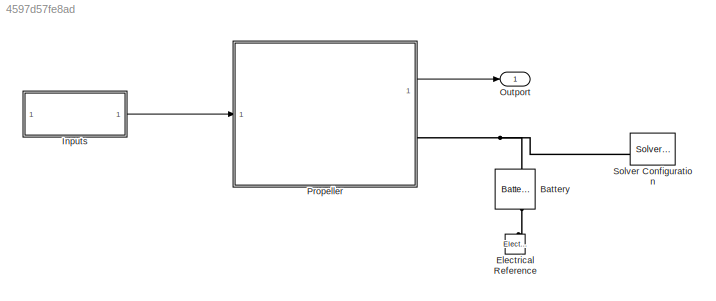
MODEL slx_4597d57fe8ad
KIND model
CONFIG AbsTol = 1e-3
CONFIG EnableMultiTasking = off
CONFIG FixedStep = auto
CONFIG MaxStep = auto
CONFIG MinStep = auto
CONFIG RelTol = 1e-3
CONFIG SampleTimeConstraint = Unconstrained
CONFIG SolverName = VariableStepAuto
CONFIG StartTime = 0.0
CONFIG StopTime = 10.0
BLOCK [Reference] Battery  REF=batteryecm_lib/Battery
  LibrarySourceBlock = ee_lib/Sources/Battery
  NameLocation = right
  SourceBlock = batteryecm_lib/Battery
  SourceType = Battery
BLOCK [Reference] Electrical Reference  REF=fl_lib/Electrical/Electrical Elements/Electrical Reference
  NameLocation = right
  SourceBlock = fl_lib/Electrical/Electrical Elements/Electrical Reference
  SourceType = Electrical Reference
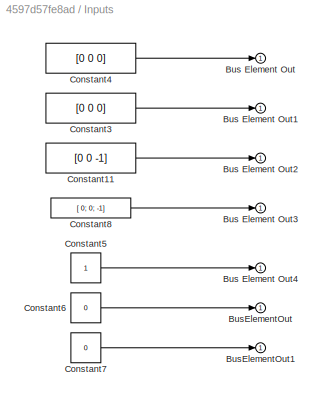
BLOCK [SubSystem] Inputs
BLOCK [Outport] Inputs/Bus Element Out
BLOCK [Outport] Inputs/Bus Element Out1
BLOCK [Outport] Inputs/Bus Element Out2
BLOCK [Outport] Inputs/Bus Element Out3
BLOCK [Outport] Inputs/Bus Element Out4
BLOCK [Outport] Inputs/BusElementOut
BLOCK [Outport] Inputs/BusElementOut1
BLOCK [Constant] Inputs/Constant11
  Value = [0 0 -1]
BLOCK [Constant] Inputs/Constant3
  Value = [0 0 0]
BLOCK [Constant] Inputs/Constant4
  Value = [0 0 0]
BLOCK [Constant] Inputs/Constant5
BLOCK [Constant] Inputs/Constant6
  Value = 0
BLOCK [Constant] Inputs/Constant7
  Value = 0
BLOCK [Constant] Inputs/Constant8
  Value = [ 0; 0; -1]
BLOCK [Outport] Outport
BLOCK [SubSystem] Propeller
  Kd = 0
  Ki = 0.005
  Kp = 0.05
  N = 100
  ReferencedSubsystem = PropulsionSystem
  RotorArm = [0.375,0.375,0]
BLOCK [Reference] Solver Configuration  REF=nesl_utility/Solver
Configuration
  SourceBlock = nesl_utility/Solver\nConfiguration
  SourceType = Solver\nConfiguration
LINE Inputs/Constant11:1 -> Inputs/Bus Element Out2:1
LINE Inputs/Constant3:1 -> Inputs/Bus Element Out1:1
LINE Inputs/Constant4:1 -> Inputs/Bus Element Out:1
LINE Inputs/Constant5:1 -> Inputs/Bus Element Out4:1
LINE Inputs/Constant6:1 -> Inputs/BusElementOut:1
LINE Inputs/Constant7:1 -> Inputs/BusElementOut1:1
LINE Inputs/Constant8:1 -> Inputs/Bus Element Out3:1
LINE Inputs:1 -> Propeller:1
LINE Propeller:1 -> Outport:1
PNET net1: Battery:LConn1 -- Propeller:RConn1 -- Solver Configuration:RConn1
PLINE Battery:RConn1 -- Electrical Reference:LConn1
note: PNET lines group multi-terminal physical nets as a canonical sorted terminal list (undirected conserving connections); 2-terminal nets keep the pairwise PLINE form
